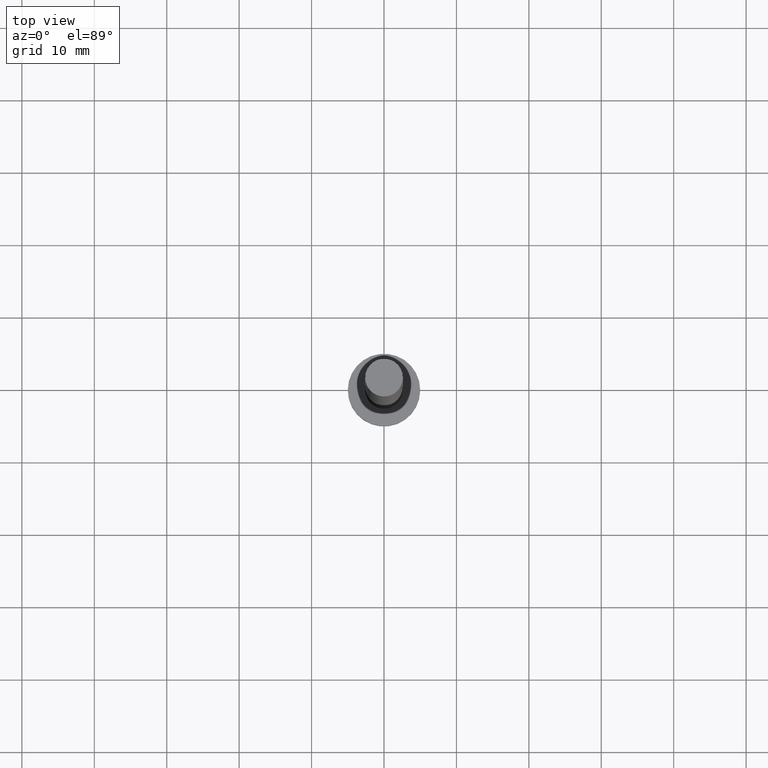
[diagram: clean part render]
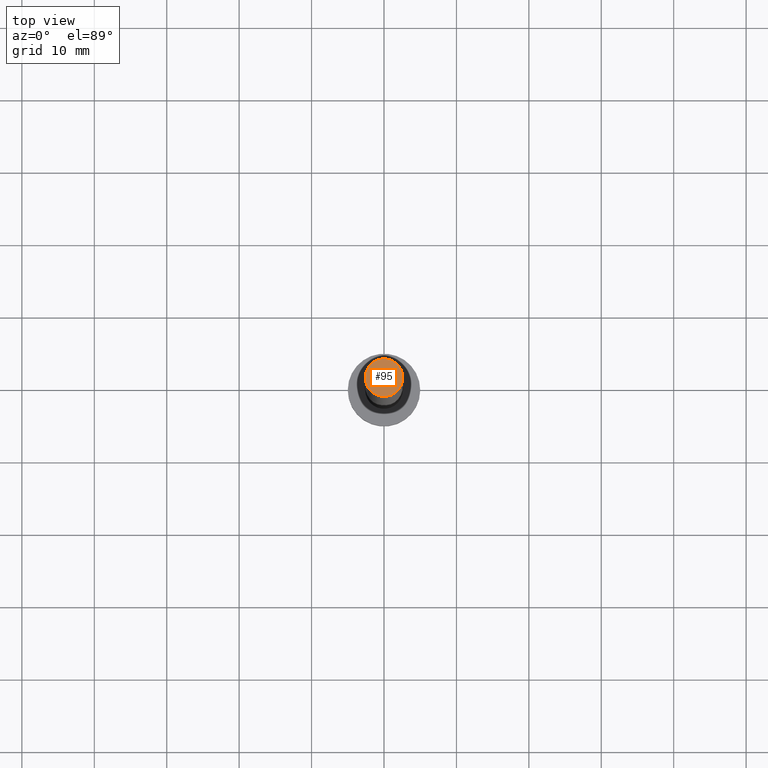
[diagram: same view with one face highlighted and labeled with its STEP entity id]
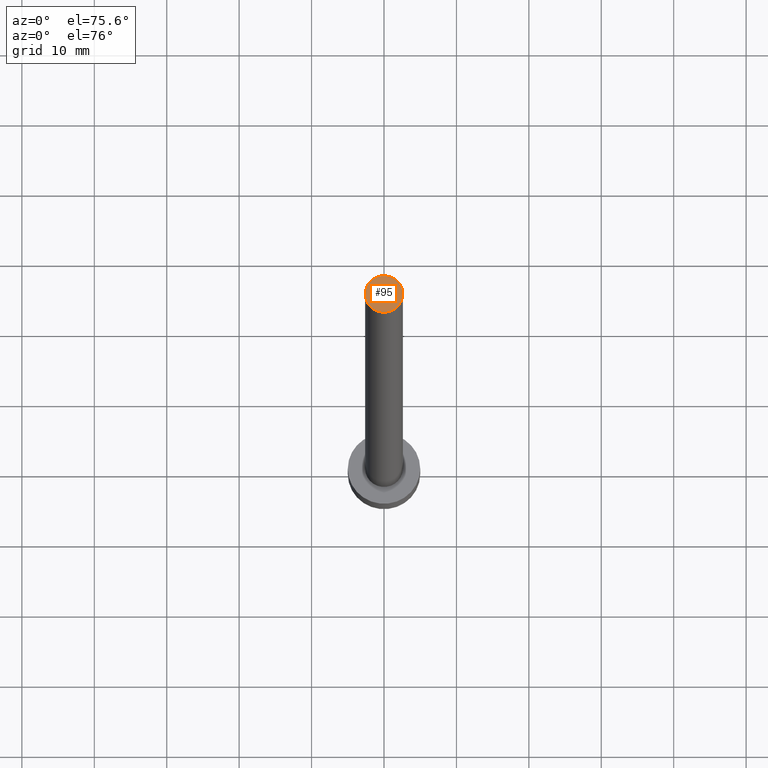
[diagram: same view with one face highlighted and labeled with its STEP entity id]
A machine part, top view. The second image highlights one B-rep face of the part: STEP entity #95.
A second angle (auxiliary view) of the same face is appended — the face is thin or edge-on in the first view.
In plain terms, the highlighted planar face has unit normal (0, 0, 1).
Its self-contained STEP definition (entity closure, byte-faithful):
#2 = CARTESIAN_POINT ( 'NONE',  ( 0.000000000000000000, 0.000000000000000000, 100.0000000000000000 ) ) ;
#7 = AXIS2_PLACEMENT_3D ( 'NONE', #106, #243, #221 ) ;
#48 = EDGE_CURVE ( 'NONE', #192, #75, #183, .T. ) ;
#54 = CARTESIAN_POINT ( 'NONE',  ( 0.000000000000000000, 0.000000000000000000, 100.0000000000000000 ) ) ;
#55 = DIRECTION ( 'NONE',  ( 1.000000000000000000, 0.000000000000000000, -0.000000000000000000 ) ) ;
#75 = VERTEX_POINT ( 'NONE', #94 ) ;
#77 = EDGE_LOOP ( 'NONE', ( #201, #136 ) ) ;
#94 = CARTESIAN_POINT ( 'NONE',  ( 2.600000000000000089, 3.184081677783117698E-16, 100.0000000000000000 ) ) ;
#95 = ADVANCED_FACE ( 'NONE', ( #159 ), #234, .T. ) ;
#106 = CARTESIAN_POINT ( 'NONE',  ( 0.000000000000000000, 0.000000000000000000, 100.0000000000000000 ) ) ;
#122 = CIRCLE ( 'NONE', #7, 2.600000000000000089 ) ;
#133 = AXIS2_PLACEMENT_3D ( 'NONE', #54, #177, #55 ) ;
#136 = ORIENTED_EDGE ( 'NONE', *, *, #168, .T. ) ;
#137 = DIRECTION ( 'NONE',  ( 0.000000000000000000, 0.000000000000000000, 1.000000000000000000 ) ) ;
#146 = CARTESIAN_POINT ( 'NONE',  ( -2.600000000000000089, 0.000000000000000000, 100.0000000000000000 ) ) ;
#159 = FACE_OUTER_BOUND ( 'NONE', #77, .T. ) ;
#161 = AXIS2_PLACEMENT_3D ( 'NONE', #2, #137, #195 ) ;
#168 = EDGE_CURVE ( 'NONE', #75, #192, #122, .T. ) ;
#177 = DIRECTION ( 'NONE',  ( 0.000000000000000000, 0.000000000000000000, 1.000000000000000000 ) ) ;
#183 = CIRCLE ( 'NONE', #161, 2.600000000000000089 ) ;
#192 = VERTEX_POINT ( 'NONE', #146 ) ;
#195 = DIRECTION ( 'NONE',  ( 1.000000000000000000, 0.000000000000000000, 0.000000000000000000 ) ) ;
#201 = ORIENTED_EDGE ( 'NONE', *, *, #48, .T. ) ;
#221 = DIRECTION ( 'NONE',  ( 1.000000000000000000, 0.000000000000000000, 0.000000000000000000 ) ) ;
#234 = PLANE ( 'NONE',  #133 ) ;
#243 = DIRECTION ( 'NONE',  ( 0.000000000000000000, 0.000000000000000000, 1.000000000000000000 ) ) ;